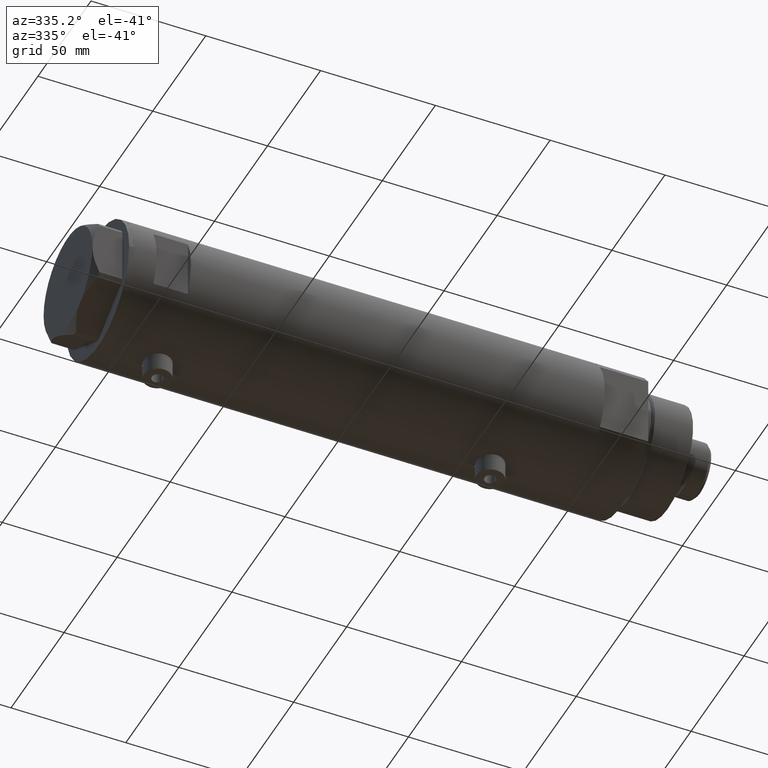
[diagram: clean part render]
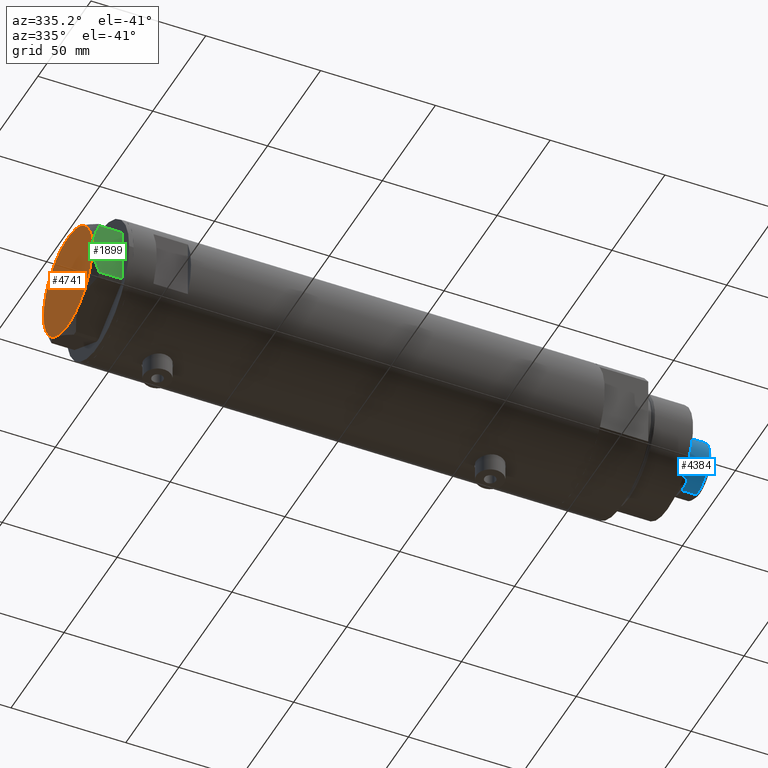
[diagram: same view with three faces highlighted in distinct colors, each labeled with its STEP entity id]
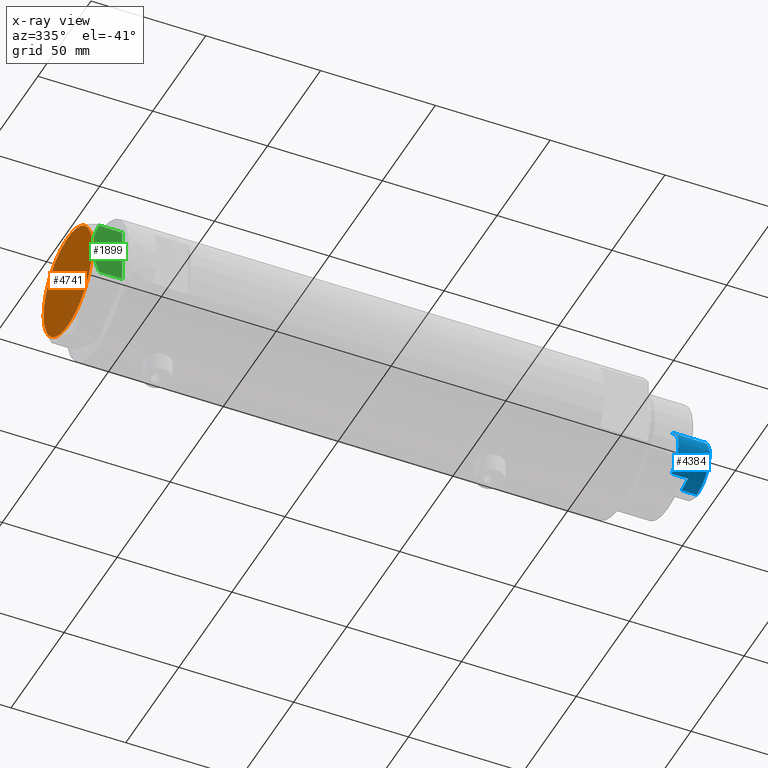
[diagram: x-ray of the same camera — body ghosted, the three highlighted faces saturated]
A machine part, auxiliary view with three faces highlighted in distinct colors.
The next image is the same camera in x-ray (body ghosted, the three faces saturated) — at least one of them is partly hidden behind the body in this view.
Their STEP definitions:

[orange] entity #4741 — the highlighted planar face has unit normal (-1, -0, 0).
#13 = DIRECTION ( 'NONE',  ( 1.000000000000000000, 0.000000000000000000, 0.000000000000000000 ) ) ;
#123 = EDGE_CURVE ( 'NONE', #3154, #730, #3058, .T. ) ;
#245 = DIRECTION ( 'NONE',  ( 1.000000000000000000, 0.000000000000000000, 0.000000000000000000 ) ) ;
#255 = CARTESIAN_POINT ( 'NONE',  ( 0.000000000000000000, 0.000000000000000000, 13.00000000000000000 ) ) ;
#371 = DIRECTION ( 'NONE',  ( 0.000000000000000000, 0.000000000000000000, 1.000000000000000000 ) ) ;
#432 = AXIS2_PLACEMENT_3D ( 'NONE', #3335, #3022, #13 ) ;
#472 = CARTESIAN_POINT ( 'NONE',  ( 0.000000000000000000, 0.000000000000000000, 13.00000000000000000 ) ) ;
#616 = EDGE_CURVE ( 'NONE', #2877, #2349, #4075, .T. ) ;
#712 = EDGE_CURVE ( 'NONE', #730, #4576, #2220, .T. ) ;
#730 = VERTEX_POINT ( 'NONE', #3656 ) ;
#812 = AXIS2_PLACEMENT_3D ( 'NONE', #3265, #2182, #245 ) ;
#972 = ORIENTED_EDGE ( 'NONE', *, *, #2765, .T. ) ;
#1015 = PLANE ( 'NONE',  #1223 ) ;
#1169 = ORIENTED_EDGE ( 'NONE', *, *, #1855, .T. ) ;
#1175 = CARTESIAN_POINT ( 'NONE',  ( 0.000000000000000000, 0.000000000000000000, 13.00000000000000000 ) ) ;
#1223 = AXIS2_PLACEMENT_3D ( 'NONE', #4387, #2502, #2140 ) ;
#1340 = ORIENTED_EDGE ( 'NONE', *, *, #123, .T. ) ;
#1357 = ORIENTED_EDGE ( 'NONE', *, *, #616, .T. ) ;
#1514 = CIRCLE ( 'NONE', #4376, 23.00000000000004619 ) ;
#1599 = AXIS2_PLACEMENT_3D ( 'NONE', #472, #2984, #1870 ) ;
#1746 = CIRCLE ( 'NONE', #432, 23.00000000000004619 ) ;
#1855 = EDGE_CURVE ( 'NONE', #2349, #3154, #3307, .T. ) ;
#1870 = DIRECTION ( 'NONE',  ( 1.000000000000000000, 0.000000000000000000, 0.000000000000000000 ) ) ;
#1882 = CARTESIAN_POINT ( 'NONE',  ( 0.000000000000000000, 0.000000000000000000, 13.00000000000000000 ) ) ;
#2010 = VERTEX_POINT ( 'NONE', #2083 ) ;
#2058 = AXIS2_PLACEMENT_3D ( 'NONE', #255, #3976, #3320 ) ;
#2083 = CARTESIAN_POINT ( 'NONE',  ( 11.49999999999990408, 19.91858428704219364, 13.00000000000000000 ) ) ;
#2140 = DIRECTION ( 'NONE',  ( 1.000000000000000000, 0.000000000000000000, -0.000000000000000000 ) ) ;
#2182 = DIRECTION ( 'NONE',  ( 0.000000000000000000, 0.000000000000000000, 1.000000000000000000 ) ) ;
#2220 = CIRCLE ( 'NONE', #812, 23.00000000000004619 ) ;
#2349 = VERTEX_POINT ( 'NONE', #3358 ) ;
#2391 = ORIENTED_EDGE ( 'NONE', *, *, #3587, .T. ) ;
#2502 = DIRECTION ( 'NONE',  ( 0.000000000000000000, 0.000000000000000000, 1.000000000000000000 ) ) ;
#2557 = FACE_OUTER_BOUND ( 'NONE', #4077, .T. ) ;
#2765 = EDGE_CURVE ( 'NONE', #2010, #2877, #1514, .T. ) ;
#2877 = VERTEX_POINT ( 'NONE', #3515 ) ;
#2890 = ORIENTED_EDGE ( 'NONE', *, *, #712, .T. ) ;
#2984 = DIRECTION ( 'NONE',  ( 0.000000000000000000, 0.000000000000000000, 1.000000000000000000 ) ) ;
#3022 = DIRECTION ( 'NONE',  ( 0.000000000000000000, 0.000000000000000000, 1.000000000000000000 ) ) ;
#3058 = CIRCLE ( 'NONE', #3293, 23.00000000000004619 ) ;
#3115 = DIRECTION ( 'NONE',  ( 0.000000000000000000, 0.000000000000000000, 1.000000000000000000 ) ) ;
#3128 = CARTESIAN_POINT ( 'NONE',  ( 22.99999999999995026, 2.373657066004705010E-13, 13.00000000000000000 ) ) ;
#3154 = VERTEX_POINT ( 'NONE', #3668 ) ;
#3265 = CARTESIAN_POINT ( 'NONE',  ( 0.000000000000000000, 0.000000000000000000, 13.00000000000000000 ) ) ;
#3293 = AXIS2_PLACEMENT_3D ( 'NONE', #1175, #3115, #4497 ) ;
#3307 = CIRCLE ( 'NONE', #1599, 23.00000000000004619 ) ;
#3320 = DIRECTION ( 'NONE',  ( 1.000000000000000000, 0.000000000000000000, 0.000000000000000000 ) ) ;
#3335 = CARTESIAN_POINT ( 'NONE',  ( 0.000000000000000000, 0.000000000000000000, 13.00000000000000000 ) ) ;
#3358 = CARTESIAN_POINT ( 'NONE',  ( -23.00000000000004619, -8.112498833180673323E-14, 13.00000000000000000 ) ) ;
#3515 = CARTESIAN_POINT ( 'NONE',  ( -11.50000000000004441, 19.91858428704211548, 13.00000000000000000 ) ) ;
#3587 = EDGE_CURVE ( 'NONE', #4576, #2010, #1746, .T. ) ;
#3656 = CARTESIAN_POINT ( 'NONE',  ( 11.50000000000018296, -19.91858428704203732, 13.00000000000000000 ) ) ;
#3668 = CARTESIAN_POINT ( 'NONE',  ( -11.49999999999990585, -19.91858428704219364, 13.00000000000000000 ) ) ;
#3746 = DIRECTION ( 'NONE',  ( 1.000000000000000000, 0.000000000000000000, 0.000000000000000000 ) ) ;
#3976 = DIRECTION ( 'NONE',  ( 0.000000000000000000, 0.000000000000000000, 1.000000000000000000 ) ) ;
#4075 = CIRCLE ( 'NONE', #2058, 23.00000000000004619 ) ;
#4077 = EDGE_LOOP ( 'NONE', ( #2890, #2391, #972, #1357, #1169, #1340 ) ) ;
#4376 = AXIS2_PLACEMENT_3D ( 'NONE', #1882, #371, #3746 ) ;
#4387 = CARTESIAN_POINT ( 'NONE',  ( 0.000000000000000000, 0.000000000000000000, 13.00000000000000000 ) ) ;
#4497 = DIRECTION ( 'NONE',  ( 1.000000000000000000, 0.000000000000000000, 0.000000000000000000 ) ) ;
#4576 = VERTEX_POINT ( 'NONE', #3128 ) ;
#4741 = ADVANCED_FACE ( 'NONE', ( #2557 ), #1015, .T. ) ;

[blue] entity #4384 — the highlighted cylindrical surface (edge-blend (fillet) strip) has radius 12 mm, axis along (-1, -0, 0).
#71 = EDGE_CURVE ( 'NONE', #937, #231, #4363, .T. ) ;
#76 = LINE ( 'NONE', #2601, #514 ) ;
#102 = LINE ( 'NONE', #3843, #1125 ) ;
#143 = DIRECTION ( 'NONE',  ( 0.000000000000000000, 0.000000000000000000, -1.000000000000000000 ) ) ;
#149 = EDGE_CURVE ( 'NONE', #937, #1790, #102, .T. ) ;
#231 = VERTEX_POINT ( 'NONE', #4162 ) ;
#267 = CARTESIAN_POINT ( 'NONE',  ( 0.000000000000000000, 0.000000000000000000, 228.8000000000000114 ) ) ;
#306 = ORIENTED_EDGE ( 'NONE', *, *, #71, .T. ) ;
#362 = CARTESIAN_POINT ( 'NONE',  ( -10.48861764008966091, -5.830000000000020499, 221.8000000000000114 ) ) ;
#428 = CIRCLE ( 'NONE', #1207, 12.00000000000000178 ) ;
#483 = CARTESIAN_POINT ( 'NONE',  ( -10.48861764008966091, -5.830000000000003624, 228.8000000000000114 ) ) ;
#514 = VECTOR ( 'NONE', #1463, 1000.000000000000000 ) ;
#529 = CARTESIAN_POINT ( 'NONE',  ( -12.00000000000000000, 0.000000000000000000, 228.8000000000000114 ) ) ;
#704 = DIRECTION ( 'NONE',  ( 1.000000000000000000, 0.000000000000000000, 0.000000000000000000 ) ) ;
#713 = ORIENTED_EDGE ( 'NONE', *, *, #3202, .T. ) ;
#937 = VERTEX_POINT ( 'NONE', #4197 ) ;
#957 = VERTEX_POINT ( 'NONE', #1611 ) ;
#1028 = EDGE_CURVE ( 'NONE', #3825, #4696, #3094, .T. ) ;
#1057 = ORIENTED_EDGE ( 'NONE', *, *, #4007, .F. ) ;
#1061 = ORIENTED_EDGE ( 'NONE', *, *, #4437, .T. ) ;
#1125 = VECTOR ( 'NONE', #2365, 1000.000000000000000 ) ;
#1196 = CARTESIAN_POINT ( 'NONE',  ( -10.48861764008966091, -5.830000000000000959, 228.8000000000000114 ) ) ;
#1207 = AXIS2_PLACEMENT_3D ( 'NONE', #267, #3238, #2511 ) ;
#1316 = CARTESIAN_POINT ( 'NONE',  ( 12.00000000000000000, 1.469576158976823947E-15, 235.4000000000000057 ) ) ;
#1406 = CARTESIAN_POINT ( 'NONE',  ( 0.000000000000000000, 0.000000000000000000, 221.8000000000000114 ) ) ;
#1427 = DIRECTION ( 'NONE',  ( 0.000000000000000000, 0.000000000000000000, 1.000000000000000000 ) ) ;
#1463 = DIRECTION ( 'NONE',  ( -0.000000000000000000, -0.000000000000000000, -1.000000000000000000 ) ) ;
#1575 = CYLINDRICAL_SURFACE ( 'NONE', #3855, 12.00000000000000000 ) ;
#1611 = CARTESIAN_POINT ( 'NONE',  ( -12.00000000000000000, 0.000000000000000000, 235.4000000000000057 ) ) ;
#1655 = VERTEX_POINT ( 'NONE', #1316 ) ;
#1709 = EDGE_CURVE ( 'NONE', #4696, #1790, #3000, .T. ) ;
#1717 = VERTEX_POINT ( 'NONE', #2892 ) ;
#1790 = VERTEX_POINT ( 'NONE', #4331 ) ;
#1838 = CARTESIAN_POINT ( 'NONE',  ( 0.000000000000000000, 0.000000000000000000, 228.8000000000000114 ) ) ;
#2088 = ORIENTED_EDGE ( 'NONE', *, *, #1709, .T. ) ;
#2239 = CIRCLE ( 'NONE', #2545, 12.00000000000000000 ) ;
#2284 = AXIS2_PLACEMENT_3D ( 'NONE', #1838, #3708, #3316 ) ;
#2356 = DIRECTION ( 'NONE',  ( -0.000000000000000000, -0.000000000000000000, -1.000000000000000000 ) ) ;
#2365 = DIRECTION ( 'NONE',  ( -0.000000000000000000, -0.000000000000000000, -1.000000000000000000 ) ) ;
#2511 = DIRECTION ( 'NONE',  ( 1.000000000000000000, 0.000000000000000000, 0.000000000000000000 ) ) ;
#2545 = AXIS2_PLACEMENT_3D ( 'NONE', #3397, #143, #3743 ) ;
#2601 = CARTESIAN_POINT ( 'NONE',  ( 12.00000000000000000, 1.469576158976823947E-15, 228.8000000000000114 ) ) ;
#2668 = ORIENTED_EDGE ( 'NONE', *, *, #149, .F. ) ;
#2677 = EDGE_CURVE ( 'NONE', #1717, #3825, #428, .T. ) ;
#2681 = DIRECTION ( 'NONE',  ( -0.000000000000000000, -0.000000000000000000, -1.000000000000000000 ) ) ;
#2696 = ORIENTED_EDGE ( 'NONE', *, *, #1028, .T. ) ;
#2874 = EDGE_LOOP ( 'NONE', ( #1057, #1061, #713, #3667, #2696, #2088, #2668, #306 ) ) ;
#2892 = CARTESIAN_POINT ( 'NONE',  ( -12.00000000000000355, 0.000000000000000000, 228.8000000000000114 ) ) ;
#3000 = CIRCLE ( 'NONE', #3772, 12.00000000000000000 ) ;
#3037 = FACE_OUTER_BOUND ( 'NONE', #2874, .T. ) ;
#3094 = LINE ( 'NONE', #1196, #4537 ) ;
#3202 = EDGE_CURVE ( 'NONE', #957, #1717, #4171, .T. ) ;
#3238 = DIRECTION ( 'NONE',  ( 0.000000000000000000, 0.000000000000000000, 1.000000000000000000 ) ) ;
#3316 = DIRECTION ( 'NONE',  ( 1.000000000000000000, 0.000000000000000000, 0.000000000000000000 ) ) ;
#3374 = DIRECTION ( 'NONE',  ( -1.000000000000000000, 0.000000000000000000, 0.000000000000000000 ) ) ;
#3397 = CARTESIAN_POINT ( 'NONE',  ( 0.000000000000000000, 0.000000000000000000, 235.4000000000000057 ) ) ;
#3436 = DIRECTION ( 'NONE',  ( -0.000000000000000000, -0.000000000000000000, -1.000000000000000000 ) ) ;
#3667 = ORIENTED_EDGE ( 'NONE', *, *, #2677, .T. ) ;
#3708 = DIRECTION ( 'NONE',  ( 0.000000000000000000, 0.000000000000000000, 1.000000000000000000 ) ) ;
#3743 = DIRECTION ( 'NONE',  ( 1.000000000000000000, 0.000000000000000000, 0.000000000000000000 ) ) ;
#3763 = CARTESIAN_POINT ( 'NONE',  ( 0.000000000000000000, 0.000000000000000000, 228.8000000000000114 ) ) ;
#3772 = AXIS2_PLACEMENT_3D ( 'NONE', #1406, #1427, #704 ) ;
#3825 = VERTEX_POINT ( 'NONE', #483 ) ;
#3843 = CARTESIAN_POINT ( 'NONE',  ( 10.48861764008966446, -5.829999999999997407, 228.8000000000000114 ) ) ;
#3849 = VECTOR ( 'NONE', #3436, 1000.000000000000000 ) ;
#3855 = AXIS2_PLACEMENT_3D ( 'NONE', #3763, #2356, #3374 ) ;
#4007 = EDGE_CURVE ( 'NONE', #1655, #231, #76, .T. ) ;
#4162 = CARTESIAN_POINT ( 'NONE',  ( 12.00000000000000355, 1.469576158976824342E-15, 228.8000000000000114 ) ) ;
#4171 = LINE ( 'NONE', #529, #3849 ) ;
#4197 = CARTESIAN_POINT ( 'NONE',  ( 10.48861764008966446, -5.829999999999997407, 228.8000000000000114 ) ) ;
#4331 = CARTESIAN_POINT ( 'NONE',  ( 10.48861764008966269, -5.830000000000016058, 221.8000000000000114 ) ) ;
#4363 = CIRCLE ( 'NONE', #2284, 12.00000000000000178 ) ;
#4384 = ADVANCED_FACE ( 'NONE', ( #3037 ), #1575, .T. ) ;
#4437 = EDGE_CURVE ( 'NONE', #1655, #957, #2239, .T. ) ;
#4537 = VECTOR ( 'NONE', #2681, 1000.000000000000000 ) ;
#4696 = VERTEX_POINT ( 'NONE', #362 ) ;

[green] entity #1899 — the highlighted planar face has unit normal (-0, 1, -0).
#18 = ORIENTED_EDGE ( 'NONE', *, *, #796, .F. ) ;
#50 = VECTOR ( 'NONE', #3309, 1000.000000000000000 ) ;
#73 = ORIENTED_EDGE ( 'NONE', *, *, #3859, .T. ) ;
#91 = DIRECTION ( 'NONE',  ( -3.527173405730720929E-15, 1.000000000000000000, 0.000000000000000000 ) ) ;
#167 = CARTESIAN_POINT ( 'NONE',  ( -22.99999999999999289, 12.15905619136132110, 9.983800287807621743 ) ) ;
#227 = B_SPLINE_CURVE_WITH_KNOTS ( 'NONE', 3,
 ( #167, #3884, #1291, #925, #4607, #1971, #2777, #4241, #2415, #3443 ),
 .UNSPECIFIED., .F., .F.,
 ( 4, 2, 2, 2, 4 ),
 ( 0.03516523594057417712, 0.03831677594541236381, 0.03989254594783145369, 0.04146831595025054357, 0.04777139595992690307 ),
 .UNSPECIFIED. ) ;
#297 = CARTESIAN_POINT ( 'NONE',  ( -22.99999999999990763, -12.15905619136148985, 13.00000000000000000 ) ) ;
#364 = ORIENTED_EDGE ( 'NONE', *, *, #2948, .F. ) ;
#403 = FACE_OUTER_BOUND ( 'NONE', #3590, .T. ) ;
#606 = CARTESIAN_POINT ( 'NONE',  ( -22.99999999999990763, -12.15905619136148985, 0.000000000000000000 ) ) ;
#667 = VERTEX_POINT ( 'NONE', #3208 ) ;
#796 = EDGE_CURVE ( 'NONE', #2349, #3216, #1172, .T. ) ;
#806 = CARTESIAN_POINT ( 'NONE',  ( -22.99999999999993250, -5.228918809624134134, 12.43333703384985611 ) ) ;
#925 = CARTESIAN_POINT ( 'NONE',  ( -22.99999999999997158, 8.748091966971372813, 11.39681897828457302 ) ) ;
#946 = LINE ( 'NONE', #3796, #4697 ) ;
#1069 = ORIENTED_EDGE ( 'NONE', *, *, #2645, .T. ) ;
#1126 = CARTESIAN_POINT ( 'NONE',  ( -22.99999999999990763, -12.15905619136149340, 9.983800287807616414 ) ) ;
#1172 = B_SPLINE_CURVE_WITH_KNOTS ( 'NONE', 3,
 ( #2273, #4092, #3001, #1908, #4062, #4757, #806, #4474, #3356, #1934, #1512, #2636, #4445, #1126 ),
 .UNSPECIFIED., .F., .F.,
 ( 4, 2, 2, 2, 2, 2, 4 ),
 ( 0.04777139595992690307, 0.04934380568070230455, 0.05091621540147769909, 0.05406103484302849510, 0.05720585428457929111, 0.05877826400535468565, 0.06035067372613008019 ),
 .UNSPECIFIED. ) ;
#1237 = VERTEX_POINT ( 'NONE', #606 ) ;
#1291 = CARTESIAN_POINT ( 'NONE',  ( -22.99999999999998579, 10.23890159976121517, 10.84081242829091707 ) ) ;
#1332 = EDGE_CURVE ( 'NONE', #667, #3621, #3281, .T. ) ;
#1512 = CARTESIAN_POINT ( 'NONE',  ( -22.99999999999991473, -10.22738952213796715, 10.83247031367477398 ) ) ;
#1548 = PLANE ( 'NONE',  #2849 ) ;
#1725 = LINE ( 'NONE', #297, #3765 ) ;
#1883 = CARTESIAN_POINT ( 'NONE',  ( -22.99999999999999289, 12.15905619136131754, 0.000000000000000000 ) ) ;
#1899 = ADVANCED_FACE ( 'NONE', ( #403 ), #1548, .F. ) ;
#1908 = CARTESIAN_POINT ( 'NONE',  ( -22.99999999999993250, -2.119709279061928964, 12.90853521217319688 ) ) ;
#1934 = CARTESIAN_POINT ( 'NONE',  ( -22.99999999999991829, -9.734726261263313418, 11.02892470009565251 ) ) ;
#1971 = CARTESIAN_POINT ( 'NONE',  ( -22.99999999999997513, 7.239756182922193695, 11.89218606342285156 ) ) ;
#2178 = DIRECTION ( 'NONE',  ( 0.000000000000000000, 0.000000000000000000, 1.000000000000000000 ) ) ;
#2273 = CARTESIAN_POINT ( 'NONE',  ( -23.00000000000004619, -8.112498833180673323E-14, 13.00000000000000000 ) ) ;
#2349 = VERTEX_POINT ( 'NONE', #3358 ) ;
#2415 = CARTESIAN_POINT ( 'NONE',  ( -22.99999999999996092, 2.122900714018063795, 13.00000000000009592 ) ) ;
#2636 = CARTESIAN_POINT ( 'NONE',  ( -22.99999999999990763, -11.20155944044818241, 10.42110268263274264 ) ) ;
#2645 = EDGE_CURVE ( 'NONE', #1237, #3216, #1725, .T. ) ;
#2714 = ORIENTED_EDGE ( 'NONE', *, *, #1332, .T. ) ;
#2777 = CARTESIAN_POINT ( 'NONE',  ( -22.99999999999997513, 6.734330413511418811, 12.03938974125266981 ) ) ;
#2849 = AXIS2_PLACEMENT_3D ( 'NONE', #3392, #3714, #91 ) ;
#2948 = EDGE_CURVE ( 'NONE', #667, #2349, #227, .T. ) ;
#3001 = CARTESIAN_POINT ( 'NONE',  ( -22.99999999999994316, -1.063773509315741217, 12.98143808360682883 ) ) ;
#3105 = CARTESIAN_POINT ( 'NONE',  ( -22.99999999999990763, -12.15905619136149340, 9.983800287807616414 ) ) ;
#3208 = CARTESIAN_POINT ( 'NONE',  ( -22.99999999999999289, 12.15905619136132110, 9.983800287807621743 ) ) ;
#3216 = VERTEX_POINT ( 'NONE', #3105 ) ;
#3281 = LINE ( 'NONE', #4493, #50 ) ;
#3309 = DIRECTION ( 'NONE',  ( 0.000000000000000000, 0.000000000000000000, -1.000000000000000000 ) ) ;
#3356 = CARTESIAN_POINT ( 'NONE',  ( -22.99999999999992184, -8.252113629125281236, 11.58164206268022234 ) ) ;
#3358 = CARTESIAN_POINT ( 'NONE',  ( -23.00000000000004619, -8.112498833180673323E-14, 13.00000000000000000 ) ) ;
#3392 = CARTESIAN_POINT ( 'NONE',  ( -22.99999999999999645, 13.27905619136132032, 13.00000000000000000 ) ) ;
#3424 = DIRECTION ( 'NONE',  ( 3.527173405730720141E-15, -1.000000000000000000, 0.000000000000000000 ) ) ;
#3443 = CARTESIAN_POINT ( 'NONE',  ( -23.00000000000004619, -8.112498833180673323E-14, 13.00000000000000000 ) ) ;
#3590 = EDGE_LOOP ( 'NONE', ( #364, #2714, #73, #1069, #18 ) ) ;
#3621 = VERTEX_POINT ( 'NONE', #1883 ) ;
#3714 = DIRECTION ( 'NONE',  ( 1.000000000000000000, 3.527173405730720929E-15, -0.000000000000000000 ) ) ;
#3765 = VECTOR ( 'NONE', #2178, 1000.000000000000000 ) ;
#3796 = CARTESIAN_POINT ( 'NONE',  ( -22.99999999999999645, 13.27905619136132032, 0.000000000000000000 ) ) ;
#3859 = EDGE_CURVE ( 'NONE', #3621, #1237, #946, .T. ) ;
#3884 = CARTESIAN_POINT ( 'NONE',  ( -22.99999999999998579, 11.20825071633914582, 10.42817330637845430 ) ) ;
#4062 = CARTESIAN_POINT ( 'NONE',  ( -22.99999999999994316, -2.643615312305168441, 12.85430456063626714 ) ) ;
#4092 = CARTESIAN_POINT ( 'NONE',  ( -22.99999999999995381, -0.5295934231897790889, 13.00000000000009237 ) ) ;
#4241 = CARTESIAN_POINT ( 'NONE',  ( -22.99999999999996447, 4.194757081058973824, 12.70300035152520302 ) ) ;
#4445 = CARTESIAN_POINT ( 'NONE',  ( -22.99999999999991473, -11.68282849742337248, 10.20637235269541776 ) ) ;
#4474 = CARTESIAN_POINT ( 'NONE',  ( -22.99999999999992184, -7.253003311474400583, 11.90327681034764140 ) ) ;
#4493 = CARTESIAN_POINT ( 'NONE',  ( -22.99999999999999289, 12.15905619136131754, 13.00000000000000000 ) ) ;
#4607 = CARTESIAN_POINT ( 'NONE',  ( -22.99999999999997513, 8.246028007352348865, 11.57113180864690705 ) ) ;
#4697 = VECTOR ( 'NONE', #3424, 1000.000000000000000 ) ;
#4757 = CARTESIAN_POINT ( 'NONE',  ( -22.99999999999992895, -4.203926054641974552, 12.64168122312250553 ) ) ;